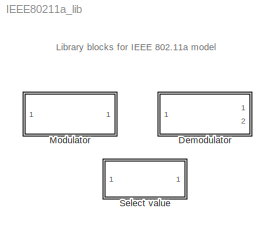
MODEL IEEE80211a_lib
KIND library
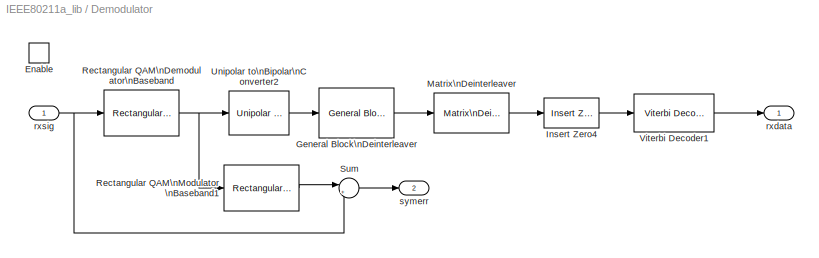
BLOCK [SubSystem] Demodulator
  MaskCallbackString = |||||
  MaskDescription = Demodulator has option to zero-pad output, so that a bank of different modulators can share the same output frame size.
  MaskDisplay = disp(['Demodulator\\n' modulation ' ' code])\nport_label('input', 1, ' ')\nport_label('output', 1, ' ')\nport_label('output', 2, 'err')
  MaskEnableString = on,on,on,on,on,on
  MaskIconFrame = on
  MaskIconOpaque = on
  MaskIconRotate = none
  MaskIconUnits = autoscale
  MaskInitialization = % number of bits per symbol\nswitch modulation\n	case 'BPSK', Nb1 = 1;\n	case 'QPSK', Nb1 = 2;\n	case '16-QAM', Nb1 = 4;\n	case '64-QAM', Nb1 = 6;\nend\n\nmodOrder = 2.^Nb1;\nNb = numSymbols * Nb1; % tx bits per block\ncodeRate = str2num(strvcat(code)).';\nbitsPerBlock = Nb .* codeRate;\n\n% interleaver\ninterleaverRows = 16;\nif rem(Nb, interleaverRows)\n	error('Number of transmitted bits per blo...<+246ch>
  MaskPromptString = Number of symbols per frame:|Modulation:|Code:|Trellis:|Puncture vector:|Viterbi trace back depth:
  MaskStyleString = edit,edit,edit,edit,edit,edit
  MaskToolTipString = on,on,on,on,on,on
  MaskTunableValueString = on,on,on,on,on,on
  MaskType = QAM Demodulator-Decoder.
  MaskValueString = 960|BPSK|3/4|poly2trellis(7, [171 133])|[1 1 1 0 0 1].'|34
  MaskVarAliasString = ,,,,,
  MaskVariables = numSymbols=@1;modulation=&2;code=&3;trellisStructure=@4;punctureVector=@5;vtbd=@6;
  MaskVisibilityString = on,on,on,on,on,on
  Ports = [1, 2, 1]
  TreatAsAtomicUnit = off
BLOCK [EnablePort] Demodulator/Enable
  Ports = []
BLOCK [Reference] Demodulator/General Block\nDeinterleaver  REF=commblkintrlv2/General Block\nDeinterleaver
  Ports = [1, 1]
  SourceBlock = commblkintrlv2/General Block\nDeinterleaver
  SourceType = General Block Deinterleaver
  elements = interleaverElements
BLOCK [Reference] Demodulator/Insert Zero4  REF=commsequence2/Insert Zero
  Ports = [1, 1]
  SourceBlock = commsequence2/Insert Zero
  SourceType = Insert Zero
  insertZeroVector = punctureVector
BLOCK [Reference] Demodulator/Matrix\nDeinterleaver  REF=commblkintrlv2/Matrix\nDeinterleaver
  Ncols = interleaverCols
  Nrows = interleaverRows
  Ports = [1, 1]
  SourceBlock = commblkintrlv2/Matrix\nDeinterleaver
  SourceType = Matrix Deinterleaver
BLOCK [Reference] Demodulator/Rectangular QAM\nDemodulator\nBaseband  REF=commdigbbndam3/Rectangular QAM\nDemodulator\nBaseband
  AvgPow = 1
  Dec = Gray
  M = modOrder
  MinDist = 2
  OutType = Bit
  PeakPow = 1
  Ph = 0
  Ports = [1, 1]
  PowType = Average Power
  SourceBlock = commdigbbndam3/Rectangular QAM\nDemodulator\nBaseband
  SourceType = Rectangular QAM Demodulator Baseband
  numSamp = 1
BLOCK [Reference] Demodulator/Rectangular QAM\nModulator\nBaseband1  REF=commdigbbndam3/Rectangular QAM\nModulator\nBaseband
  AvgPow = 1
  Enc = Gray
  InType = Bit
  M = modOrder
  MinDist = 2
  PeakPow = 1
  Ph = 0
  Ports = [1, 1]
  PowType = Average Power
  SourceBlock = commdigbbndam3/Rectangular QAM\nModulator\nBaseband
  SourceType = Rectangular QAM Modulator Baseband
  numSamp = 1
BLOCK [Sum] Demodulator/Sum
  IconShape = round
  InputSameDT = off
  Inputs = |+-
  OutDataTypeMode = Inherit via internal rule
  Ports = [2, 1]
BLOCK [Reference] Demodulator/Unipolar to\nBipolar\nConverter2  REF=commutil2/Unipolar to\nBipolar\nConverter
  M = 2
  Ports = [1, 1]
  SourceBlock = commutil2/Unipolar to\nBipolar\nConverter
  SourceType = Unipolar to Bipolar Converter
  polarity = Negative
BLOCK [Reference] Demodulator/Viterbi Decoder1  REF=commcnvcod2/Viterbi Decoder
  Ports = [1, 1]
  SourceBlock = commcnvcod2/Viterbi Decoder
  SourceType = Viterbi Decoder
  dectype = Unquantized
  nsdecb = 4
  opmode = Continuous
  reset = off
  tbdepth = vtbd
  trellis = trellisStructure
BLOCK [Outport] Demodulator/rxdata
  InitialOutput = 0
  OutputWhenDisabled = reset
BLOCK [Inport] Demodulator/rxsig
BLOCK [Outport] Demodulator/symerr
  InitialOutput = 0
  OutputWhenDisabled = reset
  Port = 2
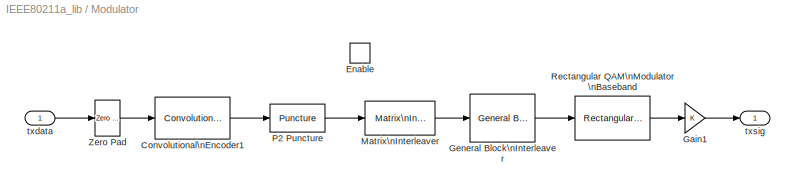
BLOCK [SubSystem] Modulator
  MaskCallbackString = ||||
  MaskDescription = Modulator gates incoming bits so that a bank of different modulators can share the same input frame size.
  MaskDisplay = disp(['Modulator\\n' modulation ' ' code])
  MaskEnableString = on,on,on,on,on
  MaskIconFrame = on
  MaskIconOpaque = on
  MaskIconRotate = none
  MaskIconUnits = autoscale
  MaskInitialization = % number of bits per symbol\nswitch modulation\n	case 'BPSK', Nb1 = 1;\n	case 'QPSK', Nb1 = 2;\n	case '16-QAM', Nb1 = 4;\n	case '64-QAM', Nb1 = 6;\nend\n\nmodOrder = 2.^Nb1;\nNb = numSymbols * Nb1; % tx bits per block\ncodeRate = str2num(strvcat(code)).';\nbitsPerBlock = Nb .* codeRate;\n\n% interleaver\ninterleaverRows = 16;\nif rem(Nb, interleaverRows)\n	error('Number of transmitted bits per blo...<+246ch>
  MaskPromptString = Number of symbols per frame:|Modulation:|Code:|Trellis:|Puncture vector:
  MaskStyleString = edit,edit,edit,edit,edit
  MaskToolTipString = on,on,on,on,on
  MaskTunableValueString = on,off,off,on,on
  MaskType = QAM Modulator-Coder.
  MaskValueString = 960|BPSK|3/4|poly2trellis(7, [171 133])|[1 1 1 0 0 1].'
  MaskVarAliasString = ,,,,
  MaskVariables = numSymbols=@1;modulation=&2;code=&3;trellisStructure=@4;punctureVector=@5;
  MaskVisibilityString = on,on,on,on,on
  Ports = [1, 1, 1]
  TreatAsAtomicUnit = off
BLOCK [Reference] Modulator/Convolutional\nEncoder1  REF=commcnvcod2/Convolutional\nEncoder
  Ports = [1, 1]
  SourceBlock = commcnvcod2/Convolutional\nEncoder
  SourceType = Convolutional Encoder
  reset = None
  trellis = trellisStructure
BLOCK [EnablePort] Modulator/Enable
  Ports = []
BLOCK [Gain] Modulator/Gain1
BLOCK [Reference] Modulator/General Block\nInterleaver  REF=commblkintrlv2/General Block\nInterleaver
  Ports = [1, 1]
  SourceBlock = commblkintrlv2/General Block\nInterleaver
  SourceType = General Block Interleaver
  elements = interleaverElements
BLOCK [Reference] Modulator/Matrix\nInterleaver  REF=commblkintrlv2/Matrix\nInterleaver
  Ncols = interleaverCols
  Nrows = interleaverRows
  Ports = [1, 1]
  SourceBlock = commblkintrlv2/Matrix\nInterleaver
  SourceType = Matrix Interleaver
BLOCK [Reference] Modulator/P2 Puncture  REF=commsequence2/Puncture
  Ports = [1, 1]
  SourceBlock = commsequence2/Puncture
  SourceType = Puncture
  punctureVector = punctureVector
BLOCK [Reference] Modulator/Rectangular QAM\nModulator\nBaseband  REF=commdigbbndam3/Rectangular QAM\nModulator\nBaseband
  AvgPow = 1
  Enc = Gray
  InType = Bit
  M = modOrder
  MinDist = 2
  PeakPow = 1
  Ph = 0
  Ports = [1, 1]
  PowType = Average Power
  SourceBlock = commdigbbndam3/Rectangular QAM\nModulator\nBaseband
  SourceType = Rectangular QAM Modulator Baseband
  numSamp = 1
BLOCK [Reference] Modulator/Zero Pad  REF=dspsigops/Zero Pad
  AttributesFormatString = \\n
  Ports = [1, 1]
  SourceBlock = dspsigops/Zero Pad
  SourceType = Zero Pad
  numOutCols = 1
  numOutRows = bitsPerBlock
  padNumOutColsSpecMethod = User-specified
  padNumOutRowsSpecMethod = User-specified
  padSigAt = End
  trunc_flag = None
  zpadAlong = Columns
BLOCK [Inport] Modulator/txdata
BLOCK [Outport] Modulator/txsig
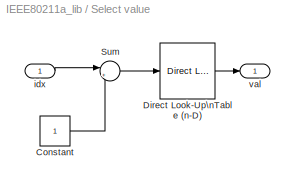
BLOCK [SubSystem] Select value
  MaskDescription = Using MATLAB-style indexing, output value of selected element of vector.
  MaskDisplay = disp('Select\\nValue')
  MaskEnableString = on
  MaskIconFrame = on
  MaskIconOpaque = off
  MaskIconRotate = none
  MaskIconUnits = autoscale
  MaskPromptString = Vector
  MaskStyleString = edit
  MaskToolTipString = on
  MaskTunableValueString = on
  MaskValueString = [0 1 2]
  MaskVariables = vector=@1;
  MaskVisibilityString = on
  Ports = [1, 1]
  TreatAsAtomicUnit = off
BLOCK [Constant] Select value/Constant
BLOCK [Reference] Select value/Direct Look-Up\nTable (n-D)  REF=simulink/Look-Up\nTables/Direct Look-Up\nTable (n-D)
  Ports = [1, 1]
  SourceBlock = simulink/Look-Up\nTables/Direct Look-Up\nTable (n-D)
  SourceType = LookupNDDirect
  clipFlag = Warning
  explicitNumDims = 1
  maskTabDims = 1
  mxTable = vector
  outDims = Element
  tabIsInput = off
BLOCK [Sum] Select value/Sum
  IconShape = round
  InputSameDT = off
  Inputs = |+-
  OutDataTypeMode = Inherit via internal rule
  Ports = [2, 1]
BLOCK [Inport] Select value/idx
BLOCK [Outport] Select value/val
ANNOTATION (root): Library blocks for IEEE 802.11a model
LINE Demodulator/General Block\nDeinterleaver:1 -> Demodulator/Matrix\nDeinterleaver:1
LINE Demodulator/Insert Zero4:1 -> Demodulator/Viterbi Decoder1:1
LINE Demodulator/Matrix\nDeinterleaver:1 -> Demodulator/Insert Zero4:1
NET Demodulator/Rectangular QAM\nDemodulator\nBaseband:1 -> Demodulator/Rectangular QAM\nModulator\nBaseband1:1, Demodulator/Unipolar to\nBipolar\nConverter2:1
LINE Demodulator/Rectangular QAM\nModulator\nBaseband1:1 -> Demodulator/Sum:1
LINE Demodulator/Sum:1 -> Demodulator/symerr:1
LINE Demodulator/Unipolar to\nBipolar\nConverter2:1 -> Demodulator/General Block\nDeinterleaver:1
LINE Demodulator/Viterbi Decoder1:1 -> Demodulator/rxdata:1
NET Demodulator/rxsig:1 -> Demodulator/Rectangular QAM\nDemodulator\nBaseband:1, Demodulator/Sum:2
LINE Modulator/Convolutional\nEncoder1:1 -> Modulator/P2 Puncture:1
LINE Modulator/Gain1:1 -> Modulator/txsig:1
LINE Modulator/General Block\nInterleaver:1 -> Modulator/Rectangular QAM\nModulator\nBaseband:1
LINE Modulator/Matrix\nInterleaver:1 -> Modulator/General Block\nInterleaver:1
LINE Modulator/P2 Puncture:1 -> Modulator/Matrix\nInterleaver:1
LINE Modulator/Rectangular QAM\nModulator\nBaseband:1 -> Modulator/Gain1:1
LINE Modulator/Zero Pad:1 -> Modulator/Convolutional\nEncoder1:1
LINE Modulator/txdata:1 -> Modulator/Zero Pad:1
LINE Select value/Constant:1 -> Select value/Sum:2
LINE Select value/Direct Look-Up\nTable (n-D):1 -> Select value/val:1
LINE Select value/Sum:1 -> Select value/Direct Look-Up\nTable (n-D):1
LINE Select value/idx:1 -> Select value/Sum:1
note: NET lines group one-source signal fan-out (src -> all destinations, sorted); 1:1 wires keep LINE
